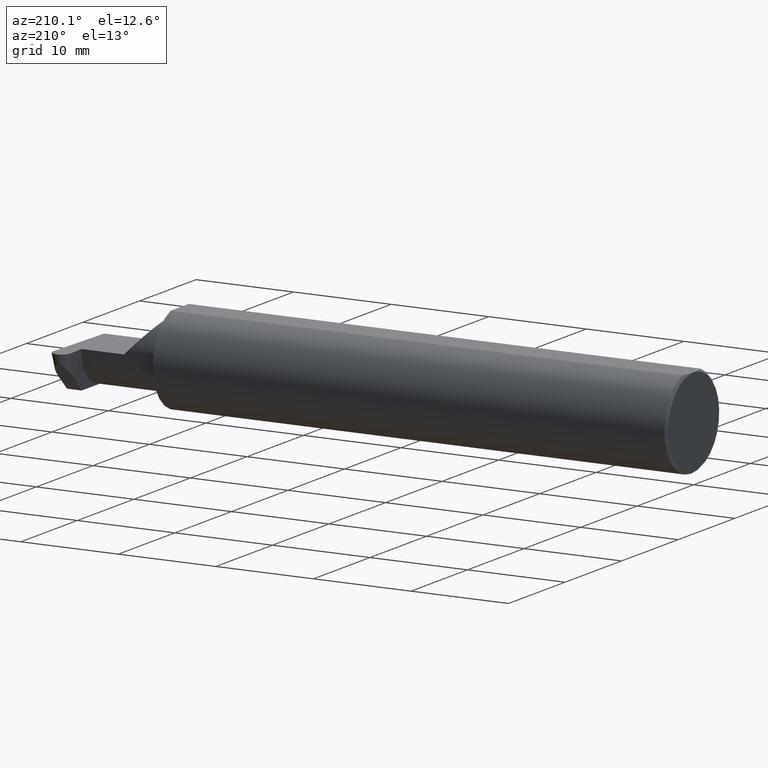
[diagram: clean part render]
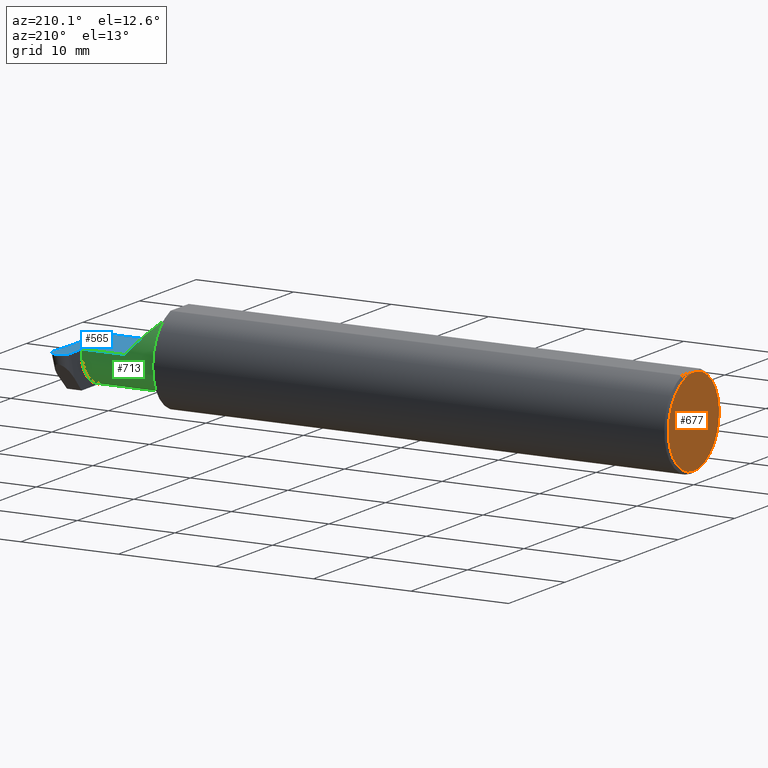
[diagram: same view with three faces highlighted in distinct colors, each labeled with its STEP entity id]
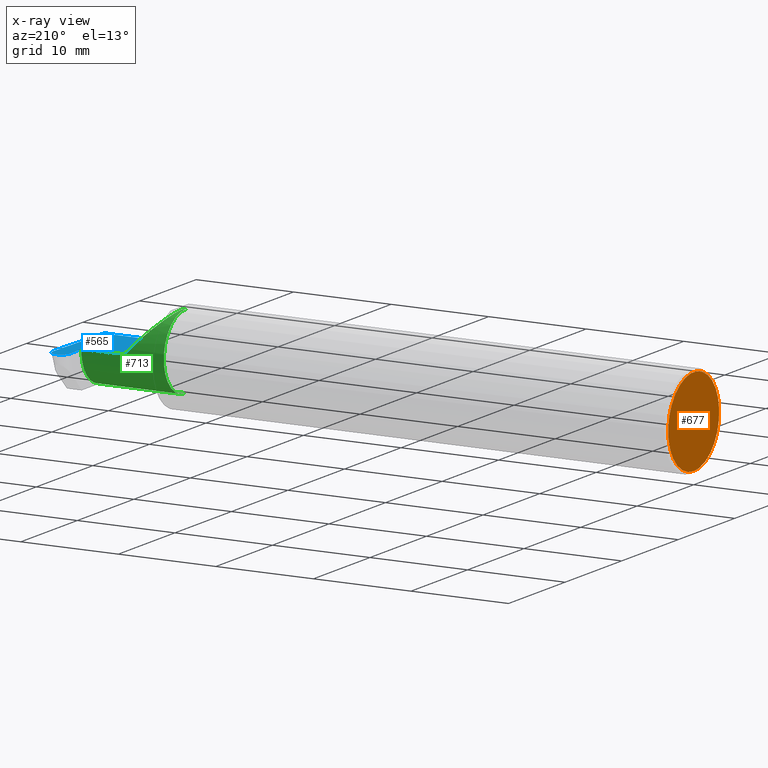
[diagram: x-ray of the same camera — body ghosted, the three highlighted faces saturated]
A machine part, auxiliary view with three faces highlighted in distinct colors.
The next image is the same camera in x-ray (body ghosted, the three faces saturated) — at least one of them is partly hidden behind the body in this view.
Their STEP definitions:

[orange] entity #677 — the highlighted planar face has unit normal (1, 0, 0).
#28 = CIRCLE ( 'NONE', #198, 0.1773500000000005072 ) ;
#70 = AXIS2_PLACEMENT_3D ( 'NONE', #161, #531, #799 ) ;
#75 = VERTEX_POINT ( 'NONE', #95 ) ;
#95 = CARTESIAN_POINT ( 'NONE',  ( 0.000000000000000000, 0.000000000000000000, -0.1773500000000005072 ) ) ;
#122 = AXIS2_PLACEMENT_3D ( 'NONE', #793, #350, #797 ) ;
#154 = DIRECTION ( 'NONE',  ( -0.000000000000000000, 1.000000000000000000, -0.000000000000000000 ) ) ;
#161 = CARTESIAN_POINT ( 'NONE',  ( 0.000000000000000000, 0.000000000000000000, 0.000000000000000000 ) ) ;
#184 = CARTESIAN_POINT ( 'NONE',  ( 0.000000000000000000, 0.000000000000000000, 0.000000000000000000 ) ) ;
#197 = EDGE_CURVE ( 'NONE', #561, #75, #237, .T. ) ;
#198 = AXIS2_PLACEMENT_3D ( 'NONE', #184, #238, #377 ) ;
#199 = ORIENTED_EDGE ( 'NONE', *, *, #719, .T. ) ;
#237 = CIRCLE ( 'NONE', #70, 0.1773500000000005072 ) ;
#238 = DIRECTION ( 'NONE',  ( -1.000000000000000000, -0.000000000000000000, -0.000000000000000000 ) ) ;
#289 = CARTESIAN_POINT ( 'NONE',  ( 0.000000000000000000, -0.01880691362239451242, 0.1763499999999999235 ) ) ;
#339 = EDGE_LOOP ( 'NONE', ( #692, #723, #199 ) ) ;
#350 = DIRECTION ( 'NONE',  ( 1.000000000000000000, 0.000000000000000000, 0.000000000000000000 ) ) ;
#354 = FACE_OUTER_BOUND ( 'NONE', #339, .T. ) ;
#377 = DIRECTION ( 'NONE',  ( 0.000000000000000000, 0.000000000000000000, -1.000000000000000000 ) ) ;
#418 = CARTESIAN_POINT ( 'NONE',  ( 0.000000000000000000, 0.1873499999999998500, 0.1763499999999999235 ) ) ;
#443 = VECTOR ( 'NONE', #154, 39.37007874015748143 ) ;
#531 = DIRECTION ( 'NONE',  ( -1.000000000000000000, -0.000000000000000000, -0.000000000000000000 ) ) ;
#561 = VERTEX_POINT ( 'NONE', #587 ) ;
#587 = CARTESIAN_POINT ( 'NONE',  ( 0.000000000000000000, 0.01880691362239451242, 0.1763499999999999235 ) ) ;
#588 = EDGE_CURVE ( 'NONE', #595, #561, #725, .T. ) ;
#595 = VERTEX_POINT ( 'NONE', #289 ) ;
#658 = PLANE ( 'NONE',  #122 ) ;
#677 = ADVANCED_FACE ( 'NONE', ( #354 ), #658, .F. ) ;
#692 = ORIENTED_EDGE ( 'NONE', *, *, #588, .T. ) ;
#719 = EDGE_CURVE ( 'NONE', #75, #595, #28, .T. ) ;
#723 = ORIENTED_EDGE ( 'NONE', *, *, #197, .T. ) ;
#725 = LINE ( 'NONE', #418, #443 ) ;
#793 = CARTESIAN_POINT ( 'NONE',  ( 0.000000000000000000, 0.000000000000000000, 0.000000000000000000 ) ) ;
#797 = DIRECTION ( 'NONE',  ( 0.000000000000000000, 0.000000000000000000, -1.000000000000000000 ) ) ;
#799 = DIRECTION ( 'NONE',  ( 0.000000000000000000, 0.000000000000000000, -1.000000000000000000 ) ) ;

[blue] entity #565 — the highlighted planar face has unit normal (-0, 0, -1).
#31 = VECTOR ( 'NONE', #450, 39.37007874015748143 ) ;
#33 = CARTESIAN_POINT ( 'NONE',  ( 2.429919976494118838, 0.1468259978756917272, 0.000000000000000000 ) ) ;
#54 = EDGE_CURVE ( 'NONE', #477, #708, #91, .T. ) ;
#58 = CARTESIAN_POINT ( 'NONE',  ( 2.488255780514392335, -0.1873499999999999888, 0.000000000000000000 ) ) ;
#74 = EDGE_CURVE ( 'NONE', #304, #402, #629, .T. ) ;
#88 = ORIENTED_EDGE ( 'NONE', *, *, #74, .F. ) ;
#91 = LINE ( 'NONE', #405, #31 ) ;
#103 = FACE_OUTER_BOUND ( 'NONE', #212, .T. ) ;
#115 = CARTESIAN_POINT ( 'NONE',  ( -0.001039370078740541395, 0.1846500000000000363, 0.000000000000000000 ) ) ;
#123 = CARTESIAN_POINT ( 'NONE',  ( 2.432719784034706123, 0.06664999999999998703, 0.000000000000000000 ) ) ;
#133 = AXIS2_PLACEMENT_3D ( 'NONE', #347, #173, #533 ) ;
#138 = CARTESIAN_POINT ( 'NONE',  ( 2.429919976494118838, 0.1468259978756917272, 0.000000000000000000 ) ) ;
#145 = CARTESIAN_POINT ( 'NONE',  ( 2.443634147710784355, 0.1846500000000000641, 6.874166512331093267E-18 ) ) ;
#172 = ORIENTED_EDGE ( 'NONE', *, *, #361, .F. ) ;
#173 = DIRECTION ( 'NONE',  ( -1.224646799147353947E-16, 0.000000000000000000, -1.000000000000000000 ) ) ;
#186 = ORIENTED_EDGE ( 'NONE', *, *, #209, .T. ) ;
#200 = CARTESIAN_POINT ( 'NONE',  ( 2.423599133234680458, 0.06664999999999991764, 0.000000000000000000 ) ) ;
#203 = VERTEX_POINT ( 'NONE', #33 ) ;
#209 = EDGE_CURVE ( 'NONE', #714, #621, #425, .T. ) ;
#212 = EDGE_LOOP ( 'NONE', ( #536, #430, #755, #540, #421, #780, #88, #172, #186 ) ) ;
#228 = CARTESIAN_POINT ( 'NONE',  ( 2.500694673384347144, 0.1688532867831435691, 4.157668328071865437E-18 ) ) ;
#243 = LINE ( 'NONE', #442, #300 ) ;
#249 = VECTOR ( 'NONE', #582, 39.37007874015748143 ) ;
#255 = CARTESIAN_POINT ( 'NONE',  ( 2.464599306921210875, 0.1846500000000000363, 0.000000000000000000 ) ) ;
#300 = VECTOR ( 'NONE', #690, 39.37007874015748143 ) ;
#304 = VERTEX_POINT ( 'NONE', #58 ) ;
#306 = LINE ( 'NONE', #553, #249 ) ;
#347 = CARTESIAN_POINT ( 'NONE',  ( 2.500000000000000000, -0.2500000000000000555, 0.000000000000000000 ) ) ;
#355 = CARTESIAN_POINT ( 'NONE',  ( 2.486211292289216335, 0.1846500000000000641, 5.931370957970135947E-18 ) ) ;
#361 = EDGE_CURVE ( 'NONE', #714, #304, #503, .T. ) ;
#387 = EDGE_CURVE ( 'NONE', #402, #795, #243, .T. ) ;
#402 = VERTEX_POINT ( 'NONE', #494 ) ;
#405 = CARTESIAN_POINT ( 'NONE',  ( 2.432719784034706123, 0.06664999999999998703, 0.000000000000000000 ) ) ;
#413 = EDGE_CURVE ( 'NONE', #795, #477, #306, .T. ) ;
#421 = ORIENTED_EDGE ( 'NONE', *, *, #413, .F. ) ;
#425 =( BOUNDED_CURVE ( )  B_SPLINE_CURVE ( 3, ( #660, #228, #355, #740 ),
 .UNSPECIFIED., .F., .F. ) 
 B_SPLINE_CURVE_WITH_KNOTS ( ( 4, 4 ),
 ( 1.627103621474502271, 3.225696776093226248 ),
 .UNSPECIFIED. ) 
 CURVE ( )  GEOMETRIC_REPRESENTATION_ITEM ( )  RATIONAL_B_SPLINE_CURVE ( ( 1.000000000000000000, 0.7981407609938082626, 0.7981407609938082626, 1.000000000000000000 ) ) 
 REPRESENTATION_ITEM ( '' )  );
#430 = ORIENTED_EDGE ( 'NONE', *, *, #463, .T. ) ;
#442 = CARTESIAN_POINT ( 'NONE',  ( 2.260000000000000231, -0.2500000000000000555, 2.939152317953647352E-17 ) ) ;
#450 = DIRECTION ( 'NONE',  ( 1.000000000000000000, 7.488084056613103845E-15, -0.000000000000000000 ) ) ;
#462 = VECTOR ( 'NONE', #757, 39.37007874015748143 ) ;
#463 = EDGE_CURVE ( 'NONE', #492, #203, #564, .T. ) ;
#477 = VERTEX_POINT ( 'NONE', #200 ) ;
#481 = PLANE ( 'NONE',  #133 ) ;
#484 = DIRECTION ( 'NONE',  ( -0.03489949670249273966, 0.9993908270190959842, -0.000000000000000000 ) ) ;
#492 = VERTEX_POINT ( 'NONE', #578 ) ;
#494 = CARTESIAN_POINT ( 'NONE',  ( 2.260000000000000231, -0.1873499999999999888, 2.939152317953647352E-17 ) ) ;
#501 = CARTESIAN_POINT ( 'NONE',  ( 2.499978631868781331, 0.1483485405823076198, 0.000000000000000000 ) ) ;
#503 = LINE ( 'NONE', #501, #462 ) ;
#525 = CARTESIAN_POINT ( 'NONE',  ( 2.465246133078789814, 0.1846500000000000363, 0.000000000000000000 ) ) ;
#533 = DIRECTION ( 'NONE',  ( -1.000000000000000000, 0.000000000000000000, 1.224646799147353947E-16 ) ) ;
#536 = ORIENTED_EDGE ( 'NONE', *, *, #788, .F. ) ;
#540 = ORIENTED_EDGE ( 'NONE', *, *, #54, .F. ) ;
#553 = CARTESIAN_POINT ( 'NONE',  ( 2.075000000000000178, 0.06665000000000002867, 5.204748896376251932E-17 ) ) ;
#554 = LINE ( 'NONE', #115, #556 ) ;
#556 = VECTOR ( 'NONE', #813, 39.37007874015748143 ) ;
#564 =( BOUNDED_CURVE ( )  B_SPLINE_CURVE ( 3, ( #255, #145, #760, #138 ),
 .UNSPECIFIED., .F., .T. ) 
 B_SPLINE_CURVE_WITH_KNOTS ( ( 4, 4 ),
 ( 3.057488531086361760, 4.656081685705084183 ),
 .UNSPECIFIED. ) 
 CURVE ( )  GEOMETRIC_REPRESENTATION_ITEM ( )  RATIONAL_B_SPLINE_CURVE ( ( 1.000000000000000000, 0.7981407609938087067, 0.7981407609938087067, 1.000000000000000000 ) ) 
 REPRESENTATION_ITEM ( '' )  );
#565 = ADVANCED_FACE ( 'NONE', ( #103 ), #481, .F. ) ;
#576 = EDGE_CURVE ( 'NONE', #708, #203, #592, .T. ) ;
#578 = CARTESIAN_POINT ( 'NONE',  ( 2.464599306921210875, 0.1846500000000000363, 0.000000000000000000 ) ) ;
#582 = DIRECTION ( 'NONE',  ( 1.000000000000000000, 0.000000000000000000, 0.000000000000000000 ) ) ;
#592 = LINE ( 'NONE', #599, #800 ) ;
#599 = CARTESIAN_POINT ( 'NONE',  ( 2.429866808131219802, 0.1483485405823075642, 0.000000000000000000 ) ) ;
#621 = VERTEX_POINT ( 'NONE', #525 ) ;
#629 = LINE ( 'NONE', #771, #726 ) ;
#660 = CARTESIAN_POINT ( 'NONE',  ( 2.499925463505881851, 0.1468259978756916440, 0.000000000000000000 ) ) ;
#680 = CARTESIAN_POINT ( 'NONE',  ( 2.260000000000000231, 0.06665000000000002867, 5.204748896376251932E-17 ) ) ;
#690 = DIRECTION ( 'NONE',  ( -0.000000000000000000, 1.000000000000000000, -0.000000000000000000 ) ) ;
#708 = VERTEX_POINT ( 'NONE', #123 ) ;
#714 = VERTEX_POINT ( 'NONE', #752 ) ;
#726 = VECTOR ( 'NONE', #762, 39.37007874015748143 ) ;
#740 = CARTESIAN_POINT ( 'NONE',  ( 2.465246133078789814, 0.1846500000000000363, 0.000000000000000000 ) ) ;
#752 = CARTESIAN_POINT ( 'NONE',  ( 2.499925463505881851, 0.1468259978756916440, 0.000000000000000000 ) ) ;
#755 = ORIENTED_EDGE ( 'NONE', *, *, #576, .F. ) ;
#757 = DIRECTION ( 'NONE',  ( -0.03489949670249533481, -0.9993908270190959842, 0.000000000000000000 ) ) ;
#760 = CARTESIAN_POINT ( 'NONE',  ( 2.429150766615653101, 0.1688532867831435691, 8.647869142229363777E-18 ) ) ;
#762 = DIRECTION ( 'NONE',  ( -1.000000000000000000, -0.000000000000000000, -0.000000000000000000 ) ) ;
#771 = CARTESIAN_POINT ( 'NONE',  ( 3.749399456654646757E-32, -0.1873499999999999610, 3.061616997868383634E-16 ) ) ;
#780 = ORIENTED_EDGE ( 'NONE', *, *, #387, .F. ) ;
#788 = EDGE_CURVE ( 'NONE', #492, #621, #554, .T. ) ;
#795 = VERTEX_POINT ( 'NONE', #680 ) ;
#800 = VECTOR ( 'NONE', #484, 39.37007874015748854 ) ;
#813 = DIRECTION ( 'NONE',  ( 1.000000000000000000, -0.000000000000000000, -0.000000000000000000 ) ) ;

[green] entity #713 — the highlighted cylindrical surface (partial cylindrical patch) has radius 3.81 mm, axis along (-1, -0, -0).
#45 = DIRECTION ( 'NONE',  ( -1.000000000000000000, -0.000000000000000000, -0.000000000000000000 ) ) ;
#51 = CARTESIAN_POINT ( 'NONE',  ( 2.172132034355963359, 0.06665000000000001479, 0.08786796564403576149 ) ) ;
#57 = CARTESIAN_POINT ( 'NONE',  ( 2.423538215936590134, 0.06658908270190941336, -0.003489949670254703304 ) ) ;
#68 = CARTESIAN_POINT ( 'NONE',  ( 2.075000000000000178, -0.08334999999999997966, -0.1500000000000000500 ) ) ;
#69 = DIRECTION ( 'NONE',  ( 0.000000000000000000, 0.000000000000000000, 1.000000000000000000 ) ) ;
#118 = DIRECTION ( 'NONE',  ( -1.000000000000000000, -0.000000000000000000, -0.000000000000000000 ) ) ;
#155 =( BOUNDED_CURVE ( )  B_SPLINE_CURVE ( 3, ( #348, #279, #526, #171 ),
 .UNSPECIFIED., .F., .F. ) 
 B_SPLINE_CURVE_WITH_KNOTS ( ( 4, 4 ),
 ( 3.159045946109736214, 4.694935687864695950 ),
 .UNSPECIFIED. ) 
 CURVE ( )  GEOMETRIC_REPRESENTATION_ITEM ( )  RATIONAL_B_SPLINE_CURVE ( ( 1.000000000000000000, 0.8128932002257790446, 0.8128932002257790446, 1.000000000000000000 ) ) 
 REPRESENTATION_ITEM ( '' )  );
#158 = EDGE_CURVE ( 'NONE', #272, #177, #155, .T. ) ;
#171 = CARTESIAN_POINT ( 'NONE',  ( 2.432814406597916257, 0.06655862405284602989, -0.005234924505382013322 ) ) ;
#176 = EDGE_CURVE ( 'NONE', #787, #795, #505, .T. ) ;
#177 = VERTEX_POINT ( 'NONE', #731 ) ;
#179 = CARTESIAN_POINT ( 'NONE',  ( 2.423568674585635296, 0.06661954135095467244, -0.001744974835127351652 ) ) ;
#187 = CARTESIAN_POINT ( 'NONE',  ( 2.423599133234680458, 0.06664999999999991764, 0.000000000000000000 ) ) ;
#200 = CARTESIAN_POINT ( 'NONE',  ( 2.423599133234680458, 0.06664999999999991764, 0.000000000000000000 ) ) ;
#215 = VECTOR ( 'NONE', #510, 39.37007874015748143 ) ;
#242 = CARTESIAN_POINT ( 'NONE',  ( 2.423507757287544528, 0.06655862405286416816, -0.005234924505382053221 ) ) ;
#249 = VECTOR ( 'NONE', #582, 39.37007874015748143 ) ;
#272 = VERTEX_POINT ( 'NONE', #794 ) ;
#279 = CARTESIAN_POINT ( 'NONE',  ( 2.435450603568175776, 0.002105059811798080851, -0.1500000000000000777 ) ) ;
#282 = ORIENTED_EDGE ( 'NONE', *, *, #413, .T. ) ;
#306 = LINE ( 'NONE', #553, #249 ) ;
#308 = LINE ( 'NONE', #68, #634 ) ;
#315 = ORIENTED_EDGE ( 'NONE', *, *, #474, .F. ) ;
#321 = LINE ( 'NONE', #465, #215 ) ;
#322 = EDGE_CURVE ( 'NONE', #360, #414, #345, .T. ) ;
#332 = CARTESIAN_POINT ( 'NONE',  ( 2.074999999999998845, 0.06655862405285899175, -0.005234924505529708547 ) ) ;
#345 = CIRCLE ( 'NONE', #710, 0.1500000000000000500 ) ;
#348 = CARTESIAN_POINT ( 'NONE',  ( 2.435477556824171330, -0.08334999999999999354, -0.1500000000000000500 ) ) ;
#360 = VERTEX_POINT ( 'NONE', #682 ) ;
#369 = VERTEX_POINT ( 'NONE', #440 ) ;
#371 = CARTESIAN_POINT ( 'NONE',  ( 2.075000000000000178, -0.08334999999999999354, 0.000000000000000000 ) ) ;
#373 = ORIENTED_EDGE ( 'NONE', *, *, #754, .T. ) ;
#374 = DIRECTION ( 'NONE',  ( 0.000000000000000000, 0.000000000000000000, 1.000000000000000000 ) ) ;
#379 = AXIS2_PLACEMENT_3D ( 'NONE', #371, #118, #374 ) ;
#411 = B_SPLINE_CURVE_WITH_KNOTS ( 'NONE', 3,
 ( #242, #57, #179, #187 ),
 .UNSPECIFIED., .F., .F.,
 ( 4, 4 ),
 ( 0.000000000000000000, 1.000000000000000000 ),
 .UNSPECIFIED. ) ;
#413 = EDGE_CURVE ( 'NONE', #795, #477, #306, .T. ) ;
#414 = VERTEX_POINT ( 'NONE', #506 ) ;
#416 = CARTESIAN_POINT ( 'NONE',  ( 2.260000000000000231, 0.06665000000000002867, 5.204748896376251932E-17 ) ) ;
#417 = ORIENTED_EDGE ( 'NONE', *, *, #176, .T. ) ;
#440 = CARTESIAN_POINT ( 'NONE',  ( 2.423507757287544528, 0.06655862405286416816, -0.005234924505382053221 ) ) ;
#465 = CARTESIAN_POINT ( 'NONE',  ( 2.075000000000000178, -0.08334999999999999354, 0.1500000000000000500 ) ) ;
#474 = EDGE_CURVE ( 'NONE', #787, #360, #321, .T. ) ;
#477 = VERTEX_POINT ( 'NONE', #200 ) ;
#479 = CARTESIAN_POINT ( 'NONE',  ( 2.109999999999998987, -0.08334999999999999354, 0.1500000000000000500 ) ) ;
#504 = ORIENTED_EDGE ( 'NONE', *, *, #322, .F. ) ;
#505 =( BOUNDED_CURVE ( )  B_SPLINE_CURVE ( 3, ( #479, #783, #51, #416 ),
 .UNSPECIFIED., .F., .T. ) 
 B_SPLINE_CURVE_WITH_KNOTS ( ( 4, 4 ),
 ( 0.000000000000000000, 1.570796326794896336 ),
 .UNSPECIFIED. ) 
 CURVE ( )  GEOMETRIC_REPRESENTATION_ITEM ( )  RATIONAL_B_SPLINE_CURVE ( ( 1.000000000000000000, 0.8047378541243650485, 0.8047378541243650485, 1.000000000000000000 ) ) 
 REPRESENTATION_ITEM ( '' )  );
#506 = CARTESIAN_POINT ( 'NONE',  ( 2.100000000000000089, -0.08334999999999996578, -0.1500000000000000777 ) ) ;
#510 = DIRECTION ( 'NONE',  ( -1.000000000000000000, -0.000000000000000000, -0.000000000000000000 ) ) ;
#526 = CARTESIAN_POINT ( 'NONE',  ( 2.434358557599728634, 0.06357628547474594716, -0.09063792740366180545 ) ) ;
#549 = CARTESIAN_POINT ( 'NONE',  ( 2.109999999999998987, -0.08334999999999999354, 0.1500000000000000500 ) ) ;
#553 = CARTESIAN_POINT ( 'NONE',  ( 2.075000000000000178, 0.06665000000000002867, 5.204748896376251932E-17 ) ) ;
#559 = EDGE_CURVE ( 'NONE', #177, #369, #573, .T. ) ;
#573 = LINE ( 'NONE', #332, #652 ) ;
#582 = DIRECTION ( 'NONE',  ( 1.000000000000000000, 0.000000000000000000, 0.000000000000000000 ) ) ;
#609 = ORIENTED_EDGE ( 'NONE', *, *, #158, .F. ) ;
#630 = EDGE_LOOP ( 'NONE', ( #609, #373, #504, #315, #417, #282, #747, #679 ) ) ;
#634 = VECTOR ( 'NONE', #807, 39.37007874015748143 ) ;
#652 = VECTOR ( 'NONE', #45, 39.37007874015748143 ) ;
#676 = FACE_OUTER_BOUND ( 'NONE', #630, .T. ) ;
#679 = ORIENTED_EDGE ( 'NONE', *, *, #559, .F. ) ;
#680 = CARTESIAN_POINT ( 'NONE',  ( 2.260000000000000231, 0.06665000000000002867, 5.204748896376251932E-17 ) ) ;
#682 = CARTESIAN_POINT ( 'NONE',  ( 2.100000000000000089, -0.08334999999999997966, 0.1500000000000000777 ) ) ;
#689 = CYLINDRICAL_SURFACE ( 'NONE', #379, 0.1500000000000000500 ) ;
#710 = AXIS2_PLACEMENT_3D ( 'NONE', #808, #750, #69 ) ;
#713 = ADVANCED_FACE ( 'NONE', ( #676 ), #689, .T. ) ;
#731 = CARTESIAN_POINT ( 'NONE',  ( 2.432814406597916257, 0.06655862405284602989, -0.005234924505382013322 ) ) ;
#742 = EDGE_CURVE ( 'NONE', #369, #477, #411, .T. ) ;
#747 = ORIENTED_EDGE ( 'NONE', *, *, #742, .F. ) ;
#750 = DIRECTION ( 'NONE',  ( -1.000000000000000000, -0.000000000000000000, -0.000000000000000000 ) ) ;
#754 = EDGE_CURVE ( 'NONE', #272, #414, #308, .T. ) ;
#783 = CARTESIAN_POINT ( 'NONE',  ( 2.109999999999998543, 0.004517965644035750600, 0.1500000000000000500 ) ) ;
#787 = VERTEX_POINT ( 'NONE', #549 ) ;
#794 = CARTESIAN_POINT ( 'NONE',  ( 2.435477556824171330, -0.08334999999999999354, -0.1500000000000000500 ) ) ;
#795 = VERTEX_POINT ( 'NONE', #680 ) ;
#807 = DIRECTION ( 'NONE',  ( -1.000000000000000000, -0.000000000000000000, -0.000000000000000000 ) ) ;
#808 = CARTESIAN_POINT ( 'NONE',  ( 2.100000000000000089, -0.08334999999999999354, 0.000000000000000000 ) ) ;